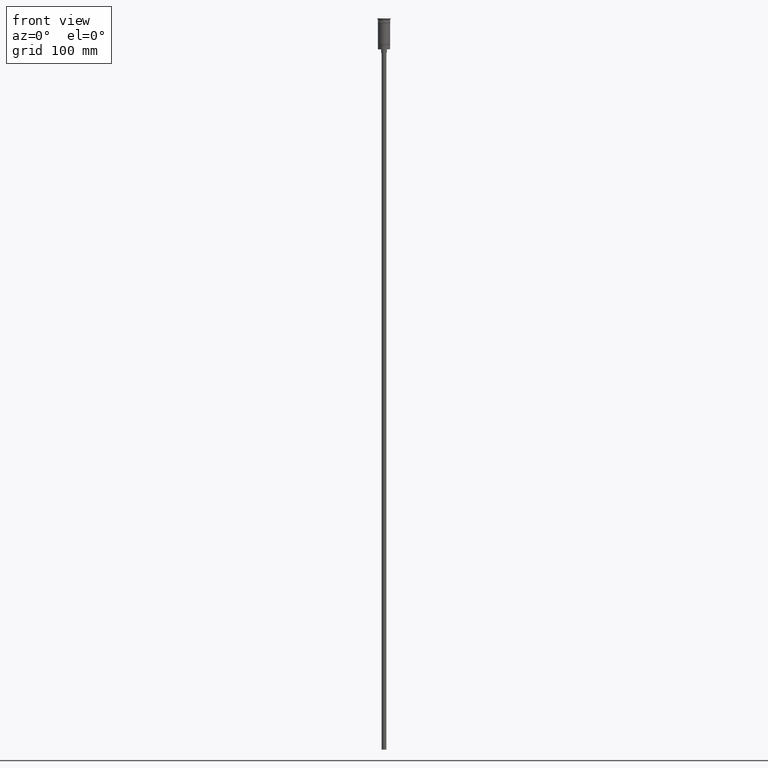
[diagram: clean part render]
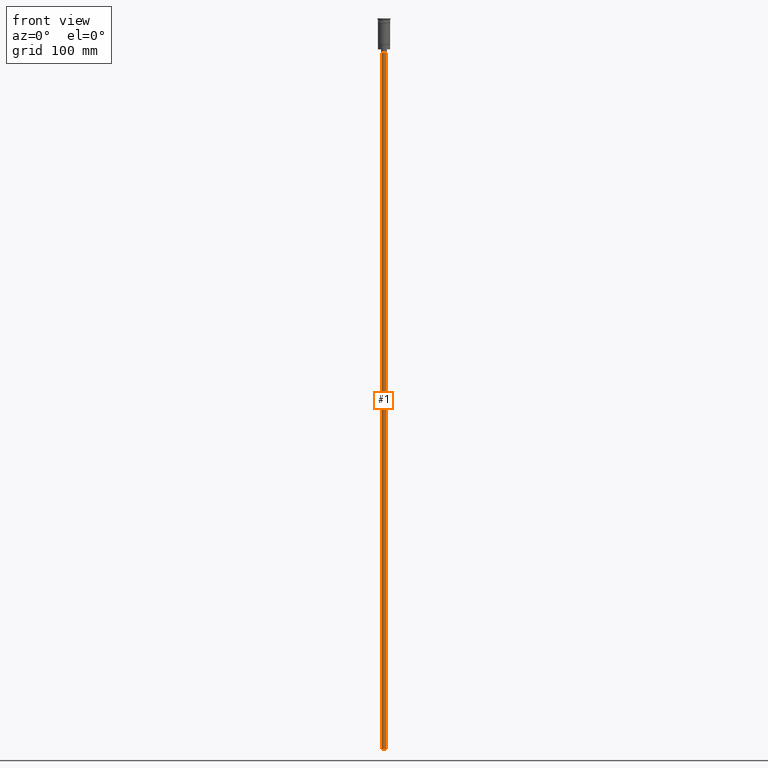
[diagram: same view with one face highlighted and labeled with its STEP entity id]
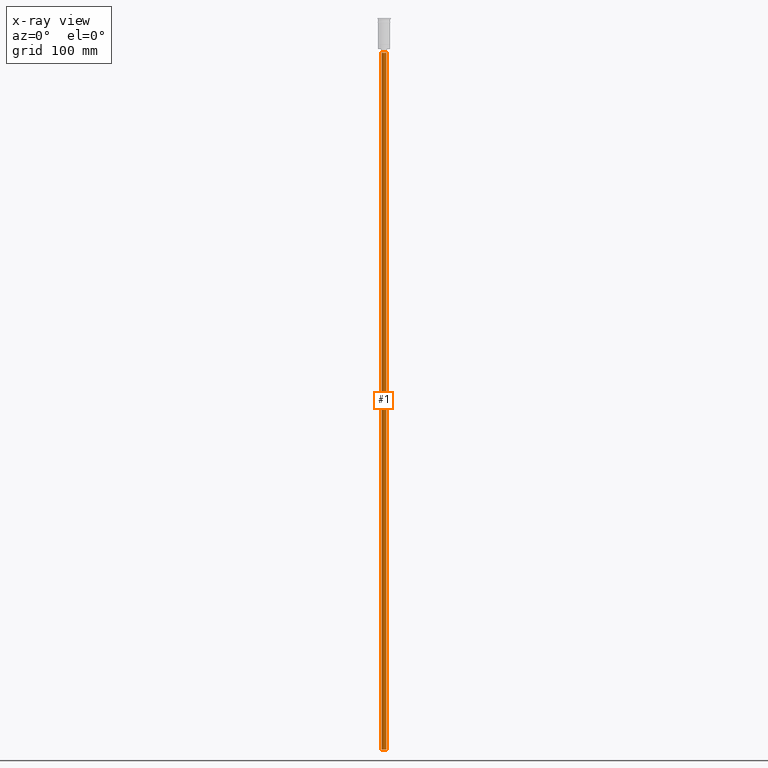
[diagram: x-ray of the same camera — body ghosted, the highlighted face saturated]
A machine part, front view. The second image highlights one B-rep face of the part: STEP entity #1.
The next image is the same camera in x-ray: the body ghosted, the highlighted face saturated — about 0% of this face is hidden behind the body in this view.
In plain terms, the highlighted cylindrical surface (edge-blend (fillet) strip) has radius 2 mm, axis along (-0, -0, 1).
Its self-contained STEP definition (entity closure, byte-faithful):
#1 = ADVANCED_FACE ( 'NONE', ( #41 ), #661, .T. ) ;
#2 = CARTESIAN_POINT ( 'NONE',  ( -2.000000000000000000, 2.449293598294706414E-16, -626.5000000000000000 ) ) ;
#4 = CARTESIAN_POINT ( 'NONE',  ( -2.000000000000000000, 2.449293598294706414E-16, -626.5000000000000000 ) ) ;
#29 = CARTESIAN_POINT ( 'NONE',  ( 0.000000000000000000, 0.000000000000000000, -626.5000000000000000 ) ) ;
#41 = FACE_OUTER_BOUND ( 'NONE', #1517, .T. ) ;
#50 = ORIENTED_EDGE ( 'NONE', *, *, #874, .F. ) ;
#144 = CARTESIAN_POINT ( 'NONE',  ( 0.000000000000000000, 0.000000000000000000, -29.50000000000000000 ) ) ;
#156 = CARTESIAN_POINT ( 'NONE',  ( 2.000000000000000000, 0.000000000000000000, -29.50000000000000000 ) ) ;
#372 = AXIS2_PLACEMENT_3D ( 'NONE', #144, #777, #1387 ) ;
#418 = DIRECTION ( 'NONE',  ( -0.000000000000000000, -0.000000000000000000, 1.000000000000000000 ) ) ;
#427 = LINE ( 'NONE', #795, #1127 ) ;
#521 = DIRECTION ( 'NONE',  ( -0.000000000000000000, -0.000000000000000000, 1.000000000000000000 ) ) ;
#590 = CARTESIAN_POINT ( 'NONE',  ( 2.000000000000000000, 0.000000000000000000, -626.5000000000000000 ) ) ;
#614 = LINE ( 'NONE', #4, #1155 ) ;
#626 = ORIENTED_EDGE ( 'NONE', *, *, #630, .T. ) ;
#630 = EDGE_CURVE ( 'NONE', #1194, #1035, #427, .T. ) ;
#644 = ORIENTED_EDGE ( 'NONE', *, *, #951, .T. ) ;
#661 = CYLINDRICAL_SURFACE ( 'NONE', #1335, 2.000000000000000000 ) ;
#736 = ORIENTED_EDGE ( 'NONE', *, *, #811, .F. ) ;
#759 = CIRCLE ( 'NONE', #996, 2.000000000000000000 ) ;
#777 = DIRECTION ( 'NONE',  ( 0.000000000000000000, 0.000000000000000000, -1.000000000000000000 ) ) ;
#795 = CARTESIAN_POINT ( 'NONE',  ( 2.000000000000000000, 0.000000000000000000, -626.5000000000000000 ) ) ;
#811 = EDGE_CURVE ( 'NONE', #1194, #1311, #759, .T. ) ;
#830 = CARTESIAN_POINT ( 'NONE',  ( -2.000000000000000000, 2.449293598294706414E-16, -29.50000000000000000 ) ) ;
#873 = DIRECTION ( 'NONE',  ( -0.000000000000000000, -0.000000000000000000, 1.000000000000000000 ) ) ;
#874 = EDGE_CURVE ( 'NONE', #1311, #1123, #614, .T. ) ;
#951 = EDGE_CURVE ( 'NONE', #1035, #1123, #1463, .T. ) ;
#996 = AXIS2_PLACEMENT_3D ( 'NONE', #1238, #1103, #1216 ) ;
#1035 = VERTEX_POINT ( 'NONE', #156 ) ;
#1036 = DIRECTION ( 'NONE',  ( 1.000000000000000000, 0.000000000000000000, 0.000000000000000000 ) ) ;
#1103 = DIRECTION ( 'NONE',  ( 0.000000000000000000, 0.000000000000000000, -1.000000000000000000 ) ) ;
#1123 = VERTEX_POINT ( 'NONE', #830 ) ;
#1127 = VECTOR ( 'NONE', #418, 1000.000000000000000 ) ;
#1155 = VECTOR ( 'NONE', #873, 1000.000000000000000 ) ;
#1194 = VERTEX_POINT ( 'NONE', #590 ) ;
#1216 = DIRECTION ( 'NONE',  ( -1.000000000000000000, 0.000000000000000000, 0.000000000000000000 ) ) ;
#1238 = CARTESIAN_POINT ( 'NONE',  ( 0.000000000000000000, 0.000000000000000000, -626.5000000000000000 ) ) ;
#1311 = VERTEX_POINT ( 'NONE', #2 ) ;
#1335 = AXIS2_PLACEMENT_3D ( 'NONE', #29, #521, #1036 ) ;
#1387 = DIRECTION ( 'NONE',  ( -1.000000000000000000, 0.000000000000000000, 0.000000000000000000 ) ) ;
#1463 = CIRCLE ( 'NONE', #372, 2.000000000000000000 ) ;
#1517 = EDGE_LOOP ( 'NONE', ( #50, #736, #626, #644 ) ) ;